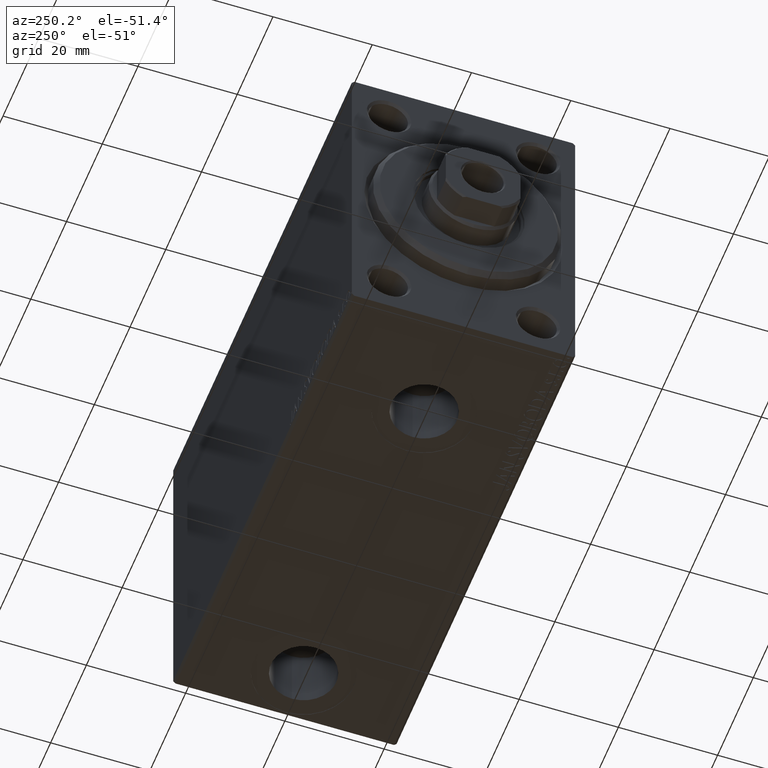
[diagram: clean part render]
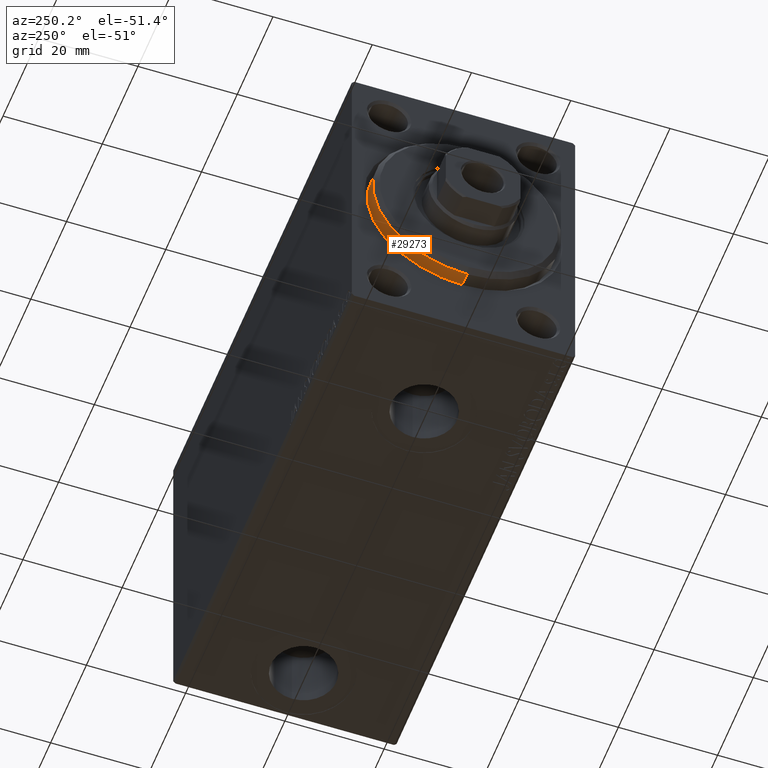
[diagram: same view with one face highlighted and labeled with its STEP entity id]
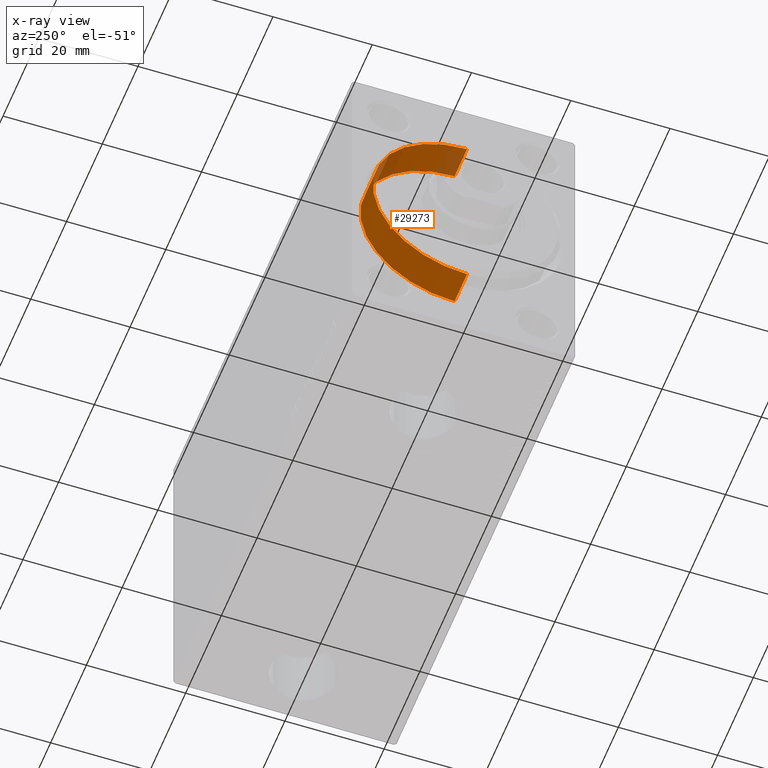
[diagram: x-ray of the same camera — body ghosted, the highlighted face saturated]
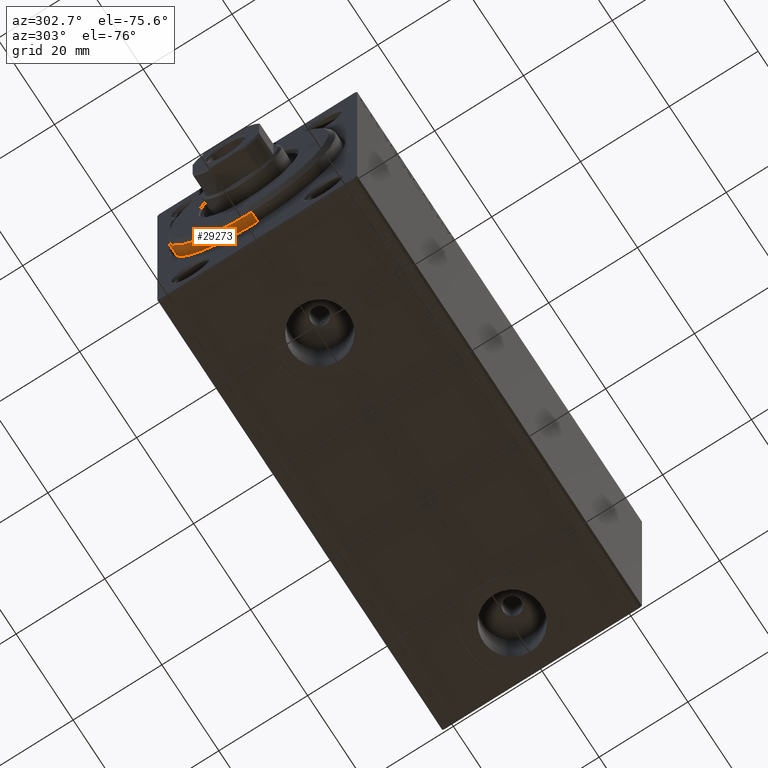
[diagram: same view with one face highlighted and labeled with its STEP entity id]
A machine part, auxiliary view. The second image highlights one B-rep face of the part: STEP entity #29273.
The next image is the same camera in x-ray: the body ghosted, the highlighted face saturated — about 8% of this face is hidden behind the body in this view.
A second angle (auxiliary view) of the same face is appended — the face is thin or edge-on in the first view.
In plain terms, the highlighted cylindrical surface (partial cylindrical patch) has radius 19 mm, axis along (1, -0, -0).
Its self-contained STEP definition (entity closure, byte-faithful):
#549 = CARTESIAN_POINT ( 'NONE',  ( -5.000000000000000000, 2.326828918379970970E-15, -19.00000000000000000 ) ) ;
#2494 = DIRECTION ( 'NONE',  ( -1.000000000000000000, -0.000000000000000000, -0.000000000000000000 ) ) ;
#2716 = CARTESIAN_POINT ( 'NONE',  ( 3.000000000000000000, 2.326828918379970970E-15, -19.00000000000000000 ) ) ;
#2944 = LINE ( 'NONE', #2716, #44135 ) ;
#8435 = CARTESIAN_POINT ( 'NONE',  ( -5.000000000000000000, 0.000000000000000000, 19.00000000000000000 ) ) ;
#8714 = LINE ( 'NONE', #22744, #11523 ) ;
#11523 = VECTOR ( 'NONE', #37028, 1000.000000000000000 ) ;
#11681 = DIRECTION ( 'NONE',  ( 0.000000000000000000, 0.000000000000000000, -1.000000000000000000 ) ) ;
#12690 = DIRECTION ( 'NONE',  ( 0.000000000000000000, 0.000000000000000000, 1.000000000000000000 ) ) ;
#12836 = VERTEX_POINT ( 'NONE', #549 ) ;
#13228 = EDGE_CURVE ( 'NONE', #18048, #36305, #8714, .T. ) ;
#13659 = CIRCLE ( 'NONE', #36479, 19.00000000000000000 ) ;
#14269 = CARTESIAN_POINT ( 'NONE',  ( -5.000000000000000000, 0.000000000000000000, 0.000000000000000000 ) ) ;
#16802 = DIRECTION ( 'NONE',  ( -1.000000000000000000, -0.000000000000000000, -0.000000000000000000 ) ) ;
#18048 = VERTEX_POINT ( 'NONE', #21302 ) ;
#19488 = CARTESIAN_POINT ( 'NONE',  ( 1.999999999999992228, 2.326828918379970970E-15, -19.00000000000000000 ) ) ;
#21302 = CARTESIAN_POINT ( 'NONE',  ( 1.999999999999992228, 0.000000000000000000, 19.00000000000000000 ) ) ;
#22344 = ORIENTED_EDGE ( 'NONE', *, *, #13228, .T. ) ;
#22744 = CARTESIAN_POINT ( 'NONE',  ( 3.000000000000000000, 0.000000000000000000, 19.00000000000000000 ) ) ;
#25371 = EDGE_CURVE ( 'NONE', #29847, #12836, #2944, .T. ) ;
#25942 = ORIENTED_EDGE ( 'NONE', *, *, #25371, .F. ) ;
#26930 = CARTESIAN_POINT ( 'NONE',  ( 3.000000000000000000, 0.000000000000000000, 0.000000000000000000 ) ) ;
#27317 = CIRCLE ( 'NONE', #36883, 19.00000000000000000 ) ;
#27919 = AXIS2_PLACEMENT_3D ( 'NONE', #26930, #16802, #12690 ) ;
#28296 = DIRECTION ( 'NONE',  ( -1.000000000000000000, 0.000000000000000000, 0.000000000000000000 ) ) ;
#29163 = CARTESIAN_POINT ( 'NONE',  ( 1.999999999999992228, 0.000000000000000000, 0.000000000000000000 ) ) ;
#29273 = ADVANCED_FACE ( 'NONE', ( #29952 ), #30839, .T. ) ;
#29714 = ORIENTED_EDGE ( 'NONE', *, *, #42513, .T. ) ;
#29847 = VERTEX_POINT ( 'NONE', #19488 ) ;
#29952 = FACE_OUTER_BOUND ( 'NONE', #40896, .T. ) ;
#30839 = CYLINDRICAL_SURFACE ( 'NONE', #27919, 19.00000000000000000 ) ;
#34450 = EDGE_CURVE ( 'NONE', #12836, #36305, #27317, .T. ) ;
#36305 = VERTEX_POINT ( 'NONE', #8435 ) ;
#36479 = AXIS2_PLACEMENT_3D ( 'NONE', #29163, #43243, #11681 ) ;
#36883 = AXIS2_PLACEMENT_3D ( 'NONE', #14269, #28296, #38915 ) ;
#37028 = DIRECTION ( 'NONE',  ( -1.000000000000000000, -0.000000000000000000, -0.000000000000000000 ) ) ;
#38915 = DIRECTION ( 'NONE',  ( 0.000000000000000000, 0.000000000000000000, 1.000000000000000000 ) ) ;
#40896 = EDGE_LOOP ( 'NONE', ( #25942, #29714, #22344, #44079 ) ) ;
#42513 = EDGE_CURVE ( 'NONE', #29847, #18048, #13659, .T. ) ;
#43243 = DIRECTION ( 'NONE',  ( -1.000000000000000000, 0.000000000000000000, 0.000000000000000000 ) ) ;
#44079 = ORIENTED_EDGE ( 'NONE', *, *, #34450, .F. ) ;
#44135 = VECTOR ( 'NONE', #2494, 1000.000000000000000 ) ;